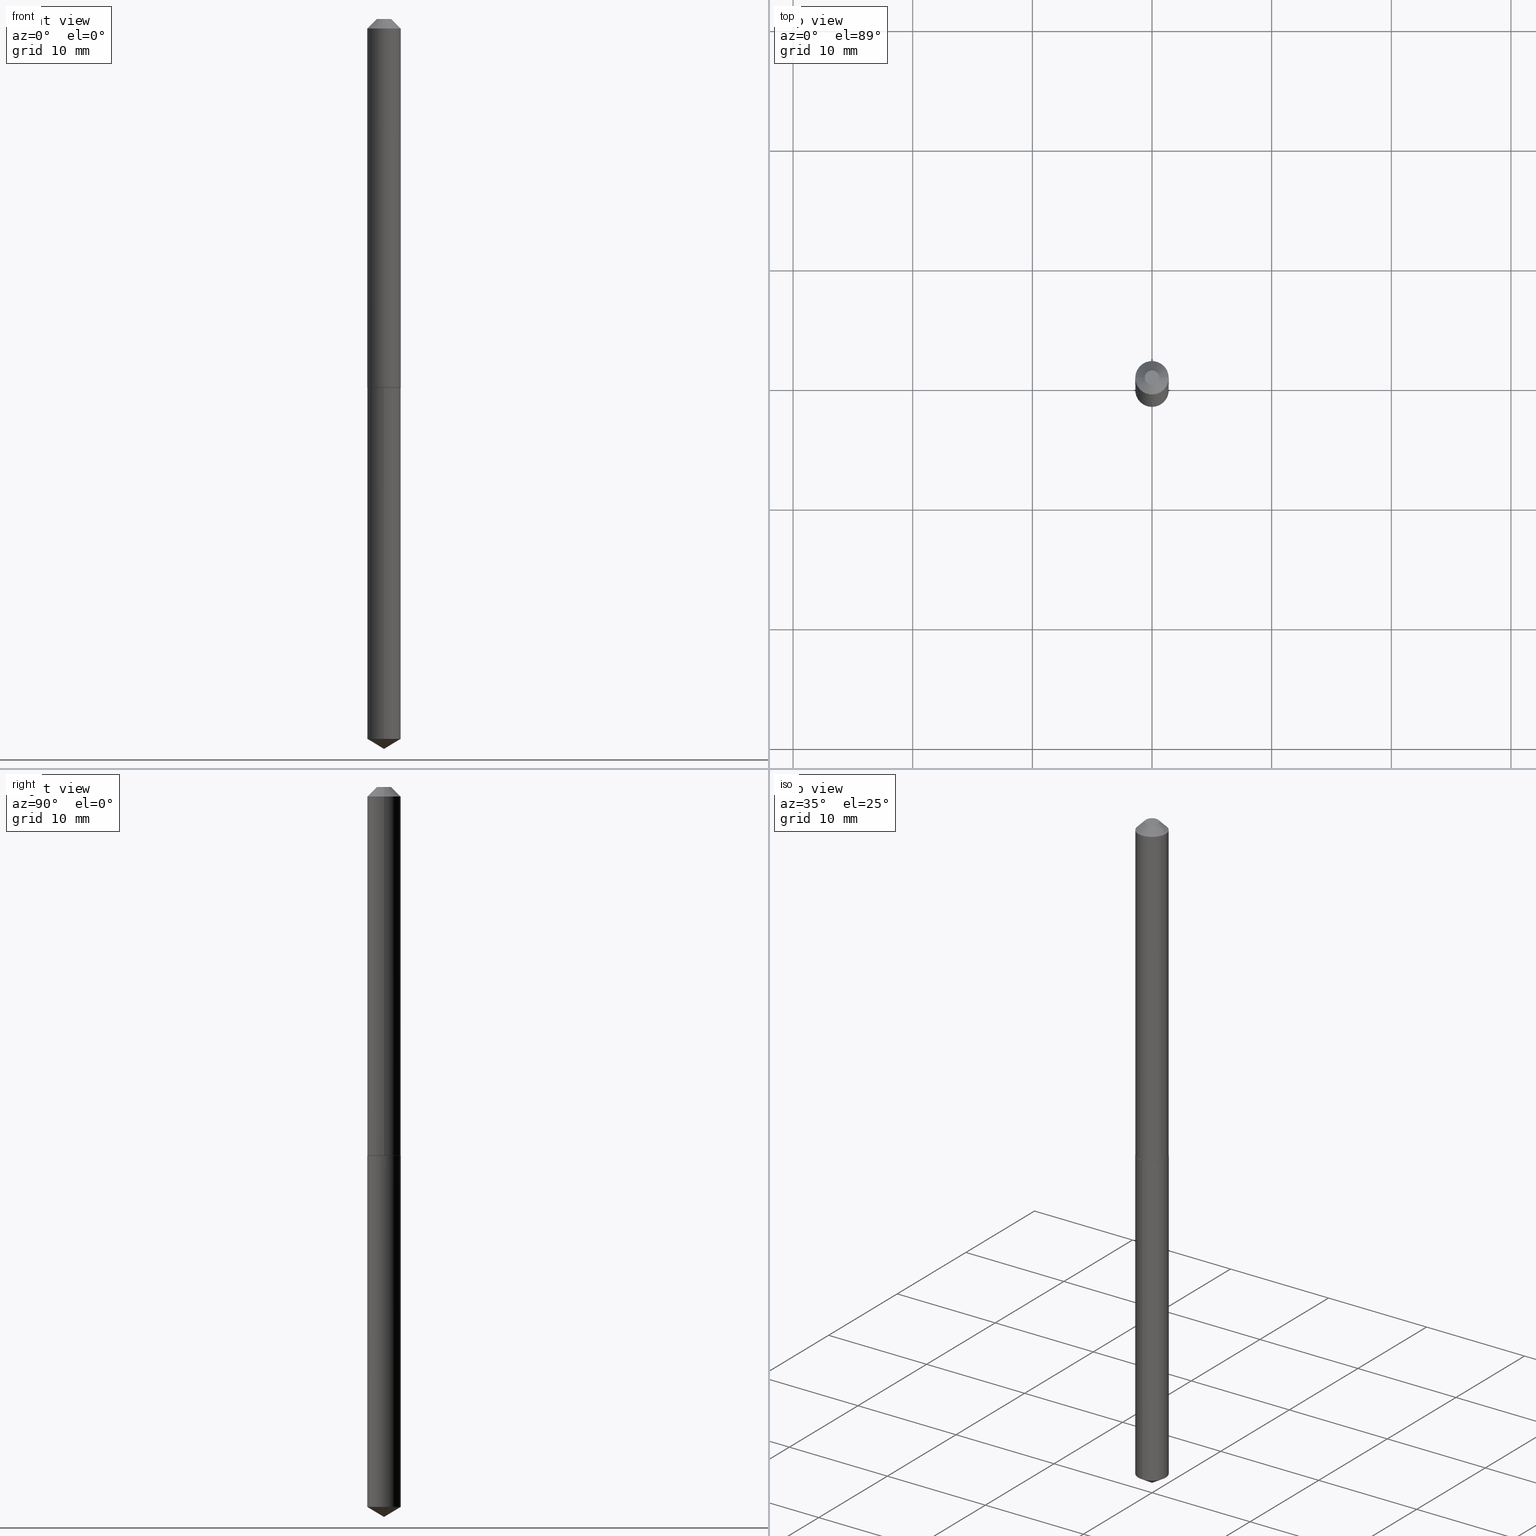
[diagram: canonical four-view strip — front | top / right | iso, engineering-drawing reading convention]
A machine part, canonical four-view strip (front | top / right | iso — engineering-drawing reading convention). The complete STEP part file that produces these views, byte-faithful:
ISO-10303-21;
HEADER;
FILE_DESCRIPTION (( 'STEP AP203' ),
    '1' );
FILE_NAME ('68308.STEP',
    '2024-04-23T13:02:25',
    ( '' ),
    ( '' ),
    'SwSTEP 2.0',
    'SolidWorks 2023',
    '' );
FILE_SCHEMA (( 'CONFIG_CONTROL_DESIGN' ));
ENDSEC;

DATA;
#1 = APPROVAL ( #9, 'UNSPECIFIED' ) ;
#2 = ORIENTED_EDGE ( 'NONE', *, *, #139, .F. ) ;
#3 = VERTEX_POINT ( 'NONE', #76 ) ;
#4 = ORIENTED_EDGE ( 'NONE', *, *, #253, .F. ) ;
#5 = DIRECTION ( 'NONE',  ( 0.000000000000000000, 0.000000000000000000, 1.000000000000000000 ) ) ;
#6 = ORIENTED_EDGE ( 'NONE', *, *, #23, .F. ) ;
#7 = CARTESIAN_POINT ( 'NONE',  ( 0.000000000000000000, 0.000000000000000000, 0.000000000000000000 ) ) ;
#8 = ORIENTED_EDGE ( 'NONE', *, *, #150, .T. ) ;
#9 = APPROVAL_STATUS ( 'not_yet_approved' ) ;
#10 = AXIS2_PLACEMENT_3D ( 'NONE', #106, #135, #229 ) ;
#11 = DIRECTION ( 'NONE',  ( -2.445510340889722322E-29, 3.491421858782170244E-15, 1.000000000000000000 ) ) ;
#12 = CARTESIAN_POINT ( 'NONE',  ( 2.965375474380097357E-29, -4.233770271481199271E-15, -1.212600000000000344 ) ) ;
#13 = AXIS2_PLACEMENT_3D ( 'NONE', #178, #27, #117 ) ;
#14 = EDGE_CURVE ( 'NONE', #248, #360, #197, .T. ) ;
#15 = CARTESIAN_POINT ( 'NONE',  ( 5.873137634680757329E-29, -8.384998736051259517E-15, -2.401600000000000179 ) ) ;
#16 = PERSON_AND_ORGANIZATION ( #349, #386 ) ;
#17 = DIRECTION ( 'NONE',  ( 1.000000000000000000, -6.982962677686264344E-15, 0.000000000000000000 ) ) ;
#18 = PERSON_AND_ORGANIZATION ( #349, #386 ) ;
#19 = DIRECTION ( 'NONE',  ( 2.438088387897960049E-29, -3.491481338843145188E-15, -1.000000000000000000 ) ) ;
#20 = DIRECTION ( 'NONE',  ( 1.000000000000000000, -6.982962677686265133E-15, 0.000000000000000000 ) ) ;
#21 = CARTESIAN_POINT ( 'NONE',  ( 2.965375474380097357E-29, -4.233770271481199271E-15, -1.212600000000000344 ) ) ;
#22 = COORDINATED_UNIVERSAL_TIME_OFFSET ( 5, 0, .BEHIND. ) ;
#23 = EDGE_CURVE ( 'NONE', #186, #3, #295, .T. ) ;
#24 = CARTESIAN_POINT ( 'NONE',  ( 2.965375474380096796E-29, -4.233770271481199271E-15, -1.212600000000000122 ) ) ;
#25 = DIRECTION ( 'NONE',  ( -2.445510340889722322E-29, 3.491421858782170244E-15, 1.000000000000000000 ) ) ;
#26 = VECTOR ( 'NONE', #264, 39.37007874015748143 ) ;
#27 = DIRECTION ( 'NONE',  ( -2.445510340889722322E-29, 3.491421858782170244E-15, 1.000000000000000000 ) ) ;
#28 = CC_DESIGN_PERSON_AND_ORGANIZATION_ASSIGNMENT ( #18, #79, ( #187 ) ) ;
#29 = DIRECTION ( 'NONE',  ( -2.445510340889722322E-29, 3.491421858782170244E-15, 1.000000000000000000 ) ) ;
#30 = ADVANCED_FACE ( 'NONE', ( #224 ), #137, .T. ) ;
#31 = ORIENTED_EDGE ( 'NONE', *, *, #231, .F. ) ;
#32 = VERTEX_POINT ( 'NONE', #166 ) ;
#33 = VERTEX_POINT ( 'NONE', #257 ) ;
#34 = ORIENTED_EDGE ( 'NONE', *, *, #23, .T. ) ;
#35 = AXIS2_PLACEMENT_3D ( 'NONE', #12, #225, #368 ) ;
#36 = ORIENTED_EDGE ( 'NONE', *, *, #291, .T. ) ;
#37 = ADVANCED_FACE ( 'NONE', ( #316 ), #282, .T. ) ;
#38 = CALENDAR_DATE ( 2024, 23, 4 ) ;
#39 = CARTESIAN_POINT ( 'NONE',  ( 2.964152739977004555E-29, -4.232024530811777768E-15, -1.212100000000000399 ) ) ;
#40 = CC_DESIGN_PERSON_AND_ORGANIZATION_ASSIGNMENT ( #62, #129, ( #198 ) ) ;
#41 = PERSON_AND_ORGANIZATION ( #349, #386 ) ;
#42 = AXIS2_PLACEMENT_3D ( 'NONE', #78, #309, #161 ) ;
#43 = DIRECTION ( 'NONE',  ( -2.445510340889722322E-29, 3.491421858782170244E-15, 1.000000000000000000 ) ) ;
#44 = DIMENSIONAL_EXPONENTS ( 1.000000000000000000, 0.000000000000000000, 0.000000000000000000, 0.000000000000000000, 0.000000000000000000, 0.000000000000000000, 0.000000000000000000 ) ;
#45 = CLOSED_SHELL ( 'NONE', ( #332, #110, #30, #37, #326 ) ) ;
#46 = CIRCLE ( 'NONE', #340, 0.02385000000000000661 ) ;
#47 = DIRECTION ( 'NONE',  ( 1.000000000000000000, -6.982962677686266711E-15, 4.876228204233108066E-29 ) ) ;
#48 = FACE_OUTER_BOUND ( 'NONE', #305, .T. ) ;
#49 = APPROVAL_DATE_TIME ( #314, #55 ) ;
#50 = CARTESIAN_POINT ( 'NONE',  ( 2.965375474380097357E-29, -4.233770271481199271E-15, -1.212600000000000344 ) ) ;
#51 = CARTESIAN_POINT ( 'NONE',  ( 0.05510000000000000314, -4.871222315160604071E-16, -0.03125000000000020123 ) ) ;
#52 = DIRECTION ( 'NONE',  ( -2.445510340889722322E-29, 3.491421858782170244E-15, 1.000000000000000000 ) ) ;
#53 = FACE_OUTER_BOUND ( 'NONE', #221, .T. ) ;
#54 = DIRECTION ( 'NONE',  ( -2.445468806185136597E-29, 3.491481338843145583E-15, 1.000000000000000000 ) ) ;
#55 = APPROVAL ( #200, 'UNSPECIFIED' ) ;
#56 = LINE ( 'NONE', #292, #261 ) ;
#57 = EDGE_CURVE ( 'NONE', #360, #33, #72, .T. ) ;
#58 = ORIENTED_EDGE ( 'NONE', *, *, #301, .T. ) ;
#59 = AXIS2_PLACEMENT_3D ( 'NONE', #102, #131, #17 ) ;
#60 = VERTEX_POINT ( 'NONE', #168 ) ;
#61 = EDGE_LOOP ( 'NONE', ( #364, #156, #99, #65 ) ) ;
#62 = PERSON_AND_ORGANIZATION ( #349, #386 ) ;
#63 = ORIENTED_EDGE ( 'NONE', *, *, #163, .F. ) ;
#64 = ADVANCED_FACE ( 'NONE', ( #48 ), #363, .T. ) ;
#65 = ORIENTED_EDGE ( 'NONE', *, *, #57, .F. ) ;
#66 = CIRCLE ( 'NONE', #133, 0.05510000000000000314 ) ;
#67 = CARTESIAN_POINT ( 'NONE',  ( -9.040684741099976020E-28, 1.290724826337878344E-13, 36.96847874015747948 ) ) ;
#68 = CC_DESIGN_DATE_AND_TIME_ASSIGNMENT ( #160, #342, ( #379 ) ) ;
#69 =( LENGTH_UNIT ( ) NAMED_UNIT ( * ) SI_UNIT ( $, .METRE. ) );
#70 = DIRECTION ( 'NONE',  ( -2.445468806185136597E-29, 3.491481338843145583E-15, 1.000000000000000000 ) ) ;
#71 = CARTESIAN_POINT ( 'NONE',  ( -2.919964657261599251E-48, 4.168935659749557485E-34, 1.194030629168671644E-19 ) ) ;
#72 = CIRCLE ( 'NONE', #176, 0.05510000000000014886 ) ;
#73 = EDGE_CURVE ( 'NONE', #367, #248, #235, .T. ) ;
#74 = DESIGN_CONTEXT ( 'detailed design', #306, 'design' ) ;
#75 = VECTOR ( 'NONE', #118, 39.37007874015748143 ) ;
#76 = CARTESIAN_POINT ( 'NONE',  ( 0.02385000000000000661, -3.253725543814557747E-16, 2.388061258354536065E-19 ) ) ;
#77 = PRODUCT_DEFINITION_SHAPE ( 'NONE', 'NONE',  #379 ) ;
#78 = CARTESIAN_POINT ( 'NONE',  ( 2.964152739977004555E-29, -4.232024530811777768E-15, -1.212100000000000399 ) ) ;
#79 = PERSON_AND_ORGANIZATION_ROLE ( 'classification_officer' ) ;
#80 = DIRECTION ( 'NONE',  ( 1.000000000000000000, -6.982962677686265133E-15, 4.876176775795935793E-29 ) ) ;
#81 = ADVANCED_FACE ( 'NONE', ( #136 ), #346, .T. ) ;
#82 = CALENDAR_DATE ( 2024, 23, 4 ) ;
#83 = DIRECTION ( 'NONE',  ( -1.000000000000000000, 6.982962677686265922E-15, 0.000000000000000000 ) ) ;
#84 = CC_DESIGN_SECURITY_CLASSIFICATION ( #187, ( #94 ) ) ;
#85 = LINE ( 'NONE', #325, #353 ) ;
#86 = CC_DESIGN_PERSON_AND_ORGANIZATION_ASSIGNMENT ( #277, #354, ( #94 ) ) ;
#87 = DIRECTION ( 'NONE',  ( -2.445468806185136597E-29, 3.491481338843145583E-15, 1.000000000000000000 ) ) ;
#88 = AXIS2_PLACEMENT_3D ( 'NONE', #50, #11, #373 ) ;
#89 = DIRECTION ( 'NONE',  ( -2.445468806185136597E-29, 3.491481338843145583E-15, 1.000000000000000000 ) ) ;
#90 = AXIS2_PLACEMENT_3D ( 'NONE', #256, #148, #105 ) ;
#91 = ORIENTED_EDGE ( 'NONE', *, *, #319, .F. ) ;
#92 = ORIENTED_EDGE ( 'NONE', *, *, #266, .T. ) ;
#93 = VERTEX_POINT ( 'NONE', #345 ) ;
#94 = PRODUCT_DEFINITION_FORMATION_WITH_SPECIFIED_SOURCE ( 'ANY', '', #198, .NOT_KNOWN. ) ;
#95 = PERSON_AND_ORGANIZATION_ROLE ( 'creator' ) ;
#96 = ORIENTED_EDGE ( 'NONE', *, *, #210, .T. ) ;
#97 = FACE_OUTER_BOUND ( 'NONE', #303, .T. ) ;
#98 = EDGE_CURVE ( 'NONE', #186, #93, #167, .T. ) ;
#99 = ORIENTED_EDGE ( 'NONE', *, *, #134, .T. ) ;
#100 = MECHANICAL_CONTEXT ( 'NONE', #184, 'mechanical' ) ;
#101 = ADVANCED_FACE ( 'NONE', ( #288 ), #310, .F. ) ;
#102 = CARTESIAN_POINT ( 'NONE',  ( 2.965375474380096796E-29, -4.233770271481199271E-15, -1.212600000000000122 ) ) ;
#103 = DIRECTION ( 'NONE',  ( -6.982962677686265922E-15, -1.000000000000000000, 2.478990919840528917E-15 ) ) ;
#104 = DIRECTION ( 'NONE',  ( 1.000000000000000000, -6.982962677686265922E-15, 4.876176775795935793E-29 ) ) ;
#105 = DIRECTION ( 'NONE',  ( 1.000000000000000000, -6.982962677686265133E-15, 4.876176775795935793E-29 ) ) ;
#106 = CARTESIAN_POINT ( 'NONE',  ( 7.642090019328600035E-31, -1.091087918388489897E-16, -0.03125000000000020123 ) ) ;
#107 = ORIENTED_EDGE ( 'NONE', *, *, #196, .F. ) ;
#108 = AXIS2_PLACEMENT_3D ( 'NONE', #24, #142, #299 ) ;
#109 = DIRECTION ( 'NONE',  ( 0.7071067811864750752, -2.468850131081498176E-15, 0.7071067811866199593 ) ) ;
#110 = ADVANCED_FACE ( 'NONE', ( #258 ), #241, .T. ) ;
#111 = CARTESIAN_POINT ( 'NONE',  ( 5.873138517963653243E-29, -8.384998736051259517E-15, -2.401600000000000179 ) ) ;
#112 = ADVANCED_FACE ( 'NONE', ( #284 ), #289, .F. ) ;
#113 = DIRECTION ( 'NONE',  ( 6.090539988449798946E-15, 0.8571673007021166635, 0.5150380749100469391 ) ) ;
#114 = AXIS2_PLACEMENT_3D ( 'NONE', #372, #251, #104 ) ;
#115 = CIRCLE ( 'NONE', #194, 0.05510000000000000314 ) ;
#116 = DIRECTION ( 'NONE',  ( -2.445468806185136597E-29, 3.491481338843145583E-15, 1.000000000000000000 ) ) ;
#117 = DIRECTION ( 'NONE',  ( -6.982962677686265922E-15, -1.000000000000000000, 4.957981839681057834E-15 ) ) ;
#118 = DIRECTION ( 'NONE',  ( 0.7071067811865452413, -7.319954787623248157E-15, -0.7071067811865497932 ) ) ;
#119 = CC_DESIGN_APPROVAL ( #1, ( #94 ) ) ;
#120 = ADVANCED_BREP_SHAPE_REPRESENTATION ( '68308', ( #222, #212, #165 ), #296 ) ;
#121 = VERTEX_POINT ( 'NONE', #15 ) ;
#122 = ORIENTED_EDGE ( 'NONE', *, *, #330, .T. ) ;
#123 = CIRCLE ( 'NONE', #108, 0.05460000000000035658 ) ;
#124 = ORIENTED_EDGE ( 'NONE', *, *, #73, .F. ) ;
#125 = APPROVAL_PERSON_ORGANIZATION ( #281, #1, #334 ) ;
#126 = CYLINDRICAL_SURFACE ( 'NONE', #90, 0.05510000000000008641 ) ;
#127 = EDGE_LOOP ( 'NONE', ( #276, #362 ) ) ;
#128 = EDGE_CURVE ( 'NONE', #33, #280, #312, .T. ) ;
#129 = PERSON_AND_ORGANIZATION_ROLE ( 'design_owner' ) ;
#130 = ORIENTED_EDGE ( 'NONE', *, *, #14, .T. ) ;
#131 = DIRECTION ( 'NONE',  ( -2.445468806185136597E-29, 3.491481338843145583E-15, 1.000000000000000000 ) ) ;
#132 = CONICAL_SURFACE ( 'NONE', #201, 0.05510000000000014886, 0.7853981633973459164 ) ;
#133 = AXIS2_PLACEMENT_3D ( 'NONE', #355, #116, #290 ) ;
#134 = EDGE_CURVE ( 'NONE', #367, #33, #377, .T. ) ;
#135 = DIRECTION ( 'NONE',  ( 2.445468806185136597E-29, -3.491481338843145583E-15, -1.000000000000000000 ) ) ;
#136 = FACE_OUTER_BOUND ( 'NONE', #61, .T. ) ;
#137 = CONICAL_SURFACE ( 'NONE', #265, 65.52281426576915635, 1.029744258676659419 ) ;
#138 = DIRECTION ( 'NONE',  ( -2.445510340889722322E-29, 3.491421858782170244E-15, 1.000000000000000000 ) ) ;
#139 = EDGE_CURVE ( 'NONE', #33, #360, #180, .T. ) ;
#140 = APPROVAL_ROLE ( '' ) ;
#141 = LOCAL_TIME ( 9, 2, 25.00000000000000000, #339 ) ;
#142 = DIRECTION ( 'NONE',  ( -2.445468806185136597E-29, 3.491481338843145583E-15, 1.000000000000000000 ) ) ;
#143 = LINE ( 'NONE', #242, #26 ) ;
#144 = FACE_OUTER_BOUND ( 'NONE', #274, .T. ) ;
#145 = AXIS2_PLACEMENT_3D ( 'NONE', #328, #358, #199 ) ;
#146 = FACE_OUTER_BOUND ( 'NONE', #151, .T. ) ;
#147 = CARTESIAN_POINT ( 'NONE',  ( 0.05510000000000000314, -4.938700353793622923E-16, -0.03125000000000020123 ) ) ;
#148 = DIRECTION ( 'NONE',  ( -2.445468806185136597E-29, 3.491481338843145583E-15, 1.000000000000000000 ) ) ;
#149 = VECTOR ( 'NONE', #113, 39.37007874015748143 ) ;
#150 = EDGE_CURVE ( 'NONE', #121, #185, #297, .T. ) ;
#151 = EDGE_LOOP ( 'NONE', ( #182, #122, #31, #107 ) ) ;
#152 = VECTOR ( 'NONE', #240, 39.37007874015748143 ) ;
#153 = ORIENTED_EDGE ( 'NONE', *, *, #317, .F. ) ;
#154 = ORIENTED_EDGE ( 'NONE', *, *, #150, .F. ) ;
#155 = APPROVAL_DATE_TIME ( #370, #1 ) ;
#156 = ORIENTED_EDGE ( 'NONE', *, *, #163, .T. ) ;
#157 = AXIS2_PLACEMENT_3D ( 'NONE', #356, #388, #294 ) ;
#158 = DIRECTION ( 'NONE',  ( 1.000000000000000000, 0.000000000000000000, 0.000000000000000000 ) ) ;
#159 = EDGE_LOOP ( 'NONE', ( #34, #278 ) ) ;
#160 = DATE_AND_TIME ( #38, #269 ) ;
#161 = DIRECTION ( 'NONE',  ( 1.000000000000000000, -6.982962677686265133E-15, 0.000000000000000000 ) ) ;
#162 = CARTESIAN_POINT ( 'NONE',  ( 0.05460000000000035658, -4.615040033682871428E-15, -1.212600000000000122 ) ) ;
#163 = EDGE_CURVE ( 'NONE', #248, #367, #123, .T. ) ;
#164 = DIRECTION ( 'NONE',  ( 1.000000000000000000, -6.982962677686265133E-15, 0.000000000000000000 ) ) ;
#165 = AXIS2_PLACEMENT_3D ( 'NONE', #7, #5, #158 ) ;
#166 = CARTESIAN_POINT ( 'NONE',  ( -3.847612435404836586E-16, -0.05510000000000424281, -1.212600000000000122 ) ) ;
#167 = LINE ( 'NONE', #191, #357 ) ;
#168 = CARTESIAN_POINT ( 'NONE',  ( -3.847612435404554569E-16, -0.05510000000000828818, -2.368492579891581684 ) ) ;
#169 = ADVANCED_FACE ( 'NONE', ( #53 ), #323, .T. ) ;
#170 = DATE_TIME_ROLE ( 'classification_date' ) ;
#171 = APPROVAL_PERSON_ORGANIZATION ( #381, #55, #140 ) ;
#172 = CARTESIAN_POINT ( 'NONE',  ( 3.915090474038731567E-16, 0.05509999999999173198, -2.368492579891582128 ) ) ;
#173 = CARTESIAN_POINT ( 'NONE',  ( -0.02385000000000000661, 2.210980557822409212E-16, 2.388061258323791482E-19 ) ) ;
#174 = AXIS2_PLACEMENT_3D ( 'NONE', #39, #70, #164 ) ;
#175 = CARTESIAN_POINT ( 'NONE',  ( 5.873036904715196670E-29, -8.385142987095137915E-15, -2.401600000000000179 ) ) ;
#176 = AXIS2_PLACEMENT_3D ( 'NONE', #195, #315, #20 ) ;
#177 = AXIS2_PLACEMENT_3D ( 'NONE', #272, #29, #103 ) ;
#178 = CARTESIAN_POINT ( 'NONE',  ( 5.792122731462659199E-29, -8.269478891318782780E-15, -2.368492579891582128 ) ) ;
#179 = CARTESIAN_POINT ( 'NONE',  ( 3.915090474038733046E-16, 0.05509999999999576348, -1.212600000000000566 ) ) ;
#180 = CIRCLE ( 'NONE', #42, 0.05510000000000014886 ) ;
#181 = ORIENTED_EDGE ( 'NONE', *, *, #128, .F. ) ;
#182 = ORIENTED_EDGE ( 'NONE', *, *, #317, .T. ) ;
#183 = EDGE_LOOP ( 'NONE', ( #304, #92, #247, #298 ) ) ;
#184 = APPLICATION_CONTEXT ( 'configuration controlled 3d designs of mechanical parts and assemblies' ) ;
#185 = VERTEX_POINT ( 'NONE', #172 ) ;
#186 = VERTEX_POINT ( 'NONE', #173 ) ;
#187 = SECURITY_CLASSIFICATION ( '', '', #311 ) ;
#188 = CALENDAR_DATE ( 2024, 23, 4 ) ;
#189 = CARTESIAN_POINT ( 'NONE',  ( 0.05510000000000014886, -4.616785774352292143E-15, -1.212100000000000399 ) ) ;
#190 = APPROVAL_ROLE ( '' ) ;
#191 = CARTESIAN_POINT ( 'NONE',  ( -0.05510000000000000314, 2.756524517016642882E-16, -0.03125000000000020123 ) ) ;
#192 = APPLICATION_PROTOCOL_DEFINITION ( 'international standard', 'config_control_design', 1994, #306 ) ;
#193 = DIRECTION ( 'NONE',  ( -6.982962677686267499E-15, -1.000000000000000000, 3.468864327941555954E-15 ) ) ;
#194 = AXIS2_PLACEMENT_3D ( 'NONE', #21, #263, #234 ) ;
#195 = CARTESIAN_POINT ( 'NONE',  ( 2.964152739977004555E-29, -4.232024530811777768E-15, -1.212100000000000399 ) ) ;
#196 = EDGE_CURVE ( 'NONE', #60, #32, #56, .T. ) ;
#197 = LINE ( 'NONE', #347, #293 ) ;
#198 = PRODUCT ( '68308', '68308', '', ( #100 ) ) ;
#199 = DIRECTION ( 'NONE',  ( -6.982962677686265922E-15, -1.000000000000000000, 4.957981839681057834E-15 ) ) ;
#200 = APPROVAL_STATUS ( 'not_yet_approved' ) ;
#201 = AXIS2_PLACEMENT_3D ( 'NONE', #327, #54, #203 ) ;
#202 = DIRECTION ( 'NONE',  ( 2.445468806185136597E-29, -3.491481338843145583E-15, -1.000000000000000000 ) ) ;
#203 = DIRECTION ( 'NONE',  ( 1.000000000000000000, -6.982962677686265133E-15, 0.000000000000000000 ) ) ;
#204 = AXIS2_PLACEMENT_3D ( 'NONE', #341, #369, #47 ) ;
#205 = CARTESIAN_POINT ( 'NONE',  ( -0.05460000000000035658, -3.843164710582071920E-15, -1.212600000000000122 ) ) ;
#206 = VECTOR ( 'NONE', #260, 39.37007874015748143 ) ;
#207 = VERTEX_POINT ( 'NONE', #179 ) ;
#208 = CIRCLE ( 'NONE', #35, 0.05510000000000000314 ) ;
#209 = CARTESIAN_POINT ( 'NONE',  ( 0.000000000000000000, 0.000000000000000000, 0.000000000000000000 ) ) ;
#210 = EDGE_CURVE ( 'NONE', #121, #60, #387, .T. ) ;
#211 = UNCERTAINTY_MEASURE_WITH_UNIT (LENGTH_MEASURE( 1.000000000000000082E-05 ), #228, 'distance_accuracy_value', 'NONE');
#212 = MANIFOLD_SOLID_BREP ( 'Body-Move/Copy2[2]', #268 ) ;
#213 = APPROVAL ( #279, 'UNSPECIFIED' ) ;
#214 = ORIENTED_EDGE ( 'NONE', *, *, #253, .T. ) ;
#215 = ORIENTED_EDGE ( 'NONE', *, *, #266, .F. ) ;
#216 = CC_DESIGN_APPROVAL ( #213, ( #379 ) ) ;
#217 = ORIENTED_EDGE ( 'NONE', *, *, #128, .T. ) ;
#218 = COORDINATED_UNIVERSAL_TIME_OFFSET ( 5, 0, .BEHIND. ) ;
#219 = ORIENTED_EDGE ( 'NONE', *, *, #227, .T. ) ;
#220 =( NAMED_UNIT ( * ) PLANE_ANGLE_UNIT ( ) SI_UNIT ( $, .RADIAN. ) );
#221 = EDGE_LOOP ( 'NONE', ( #91, #36, #219, #300 ) ) ;
#222 = MANIFOLD_SOLID_BREP ( 'Body-Move/Copy2[1]', #45 ) ;
#223 = APPLICATION_PROTOCOL_DEFINITION ( 'international standard', 'config_control_design', 1994, #184 ) ;
#224 = FACE_OUTER_BOUND ( 'NONE', #246, .T. ) ;
#225 = DIRECTION ( 'NONE',  ( -2.445510340889722322E-29, 3.491421858782170244E-15, 1.000000000000000000 ) ) ;
#226 = ORIENTED_EDGE ( 'NONE', *, *, #227, .F. ) ;
#227 = EDGE_CURVE ( 'NONE', #280, #93, #66, .T. ) ;
#228 =( CONVERSION_BASED_UNIT ( 'INCH', #244 ) LENGTH_UNIT ( ) NAMED_UNIT ( #44 ) );
#229 = DIRECTION ( 'NONE',  ( -1.000000000000000000, 6.982962677686265922E-15, 0.000000000000000000 ) ) ;
#230 = CARTESIAN_POINT ( 'NONE',  ( 0.05510000000000008641, -3.847612435405138326E-16, 2.686773403463564871E-30 ) ) ;
#231 = EDGE_CURVE ( 'NONE', #32, #207, #115, .T. ) ;
#232 = DIRECTION ( 'NONE',  ( -0.7071067811864750752, 7.493145998870092258E-15, 0.7071067811866199593 ) ) ;
#233 = PERSON_AND_ORGANIZATION_ROLE ( 'design_supplier' ) ;
#234 = DIRECTION ( 'NONE',  ( -6.982962677686265922E-15, -1.000000000000000000, 2.478990919840528917E-15 ) ) ;
#235 = CIRCLE ( 'NONE', #59, 0.05460000000000035658 ) ;
#236 = PLANE ( 'NONE',  #320 ) ;
#237 = AXIS2_PLACEMENT_3D ( 'NONE', #71, #19, #374 ) ;
#238 = CIRCLE ( 'NONE', #145, 0.05510000000000000314 ) ;
#239 = DIRECTION ( 'NONE',  ( 6.982962677686265922E-15, 1.000000000000000000, -3.491421858782170244E-15 ) ) ;
#240 = DIRECTION ( 'NONE',  ( -5.985567269335961790E-15, -0.8571673007021131108, 0.5150380749100529343 ) ) ;
#241 = CONICAL_SURFACE ( 'NONE', #375, 65.52281426576915635, 1.029744258676659419 ) ;
#242 = CARTESIAN_POINT ( 'NONE',  ( -0.05510000000000008641, 3.915090474038158164E-16, -2.710333234730456984E-30 ) ) ;
#243 = CIRCLE ( 'NONE', #13, 0.05510000000000000314 ) ;
#244 = LENGTH_MEASURE_WITH_UNIT ( LENGTH_MEASURE( 0.02539999999999999897 ), #69 );
#245 = ORIENTED_EDGE ( 'NONE', *, *, #98, .T. ) ;
#246 = EDGE_LOOP ( 'NONE', ( #154, #96, #215 ) ) ;
#247 = ORIENTED_EDGE ( 'NONE', *, *, #196, .T. ) ;
#248 = VERTEX_POINT ( 'NONE', #205 ) ;
#249 = CARTESIAN_POINT ( 'NONE',  ( -0.05510000000000014886, -3.840515483407961508E-15, -1.212100000000000399 ) ) ;
#250 = ADVANCED_FACE ( 'NONE', ( #144 ), #351, .T. ) ;
#251 = DIRECTION ( 'NONE',  ( -2.438088387897960049E-29, 3.491481338843145188E-15, 1.000000000000000000 ) ) ;
#252 = COORDINATED_UNIVERSAL_TIME_OFFSET ( 5, 0, .BEHIND. ) ;
#253 = EDGE_CURVE ( 'NONE', #93, #280, #302, .T. ) ;
#254 = DIRECTION ( 'NONE',  ( -0.7071067811865452413, 2.468850131082233000E-15, -0.7071067811865497932 ) ) ;
#255 = CC_DESIGN_APPROVAL ( #55, ( #187 ) ) ;
#256 = CARTESIAN_POINT ( 'NONE',  ( 0.000000000000000000, 0.000000000000000000, 0.000000000000000000 ) ) ;
#257 = CARTESIAN_POINT ( 'NONE',  ( 0.05510000000000014886, -4.616785774352292143E-15, -1.212100000000000399 ) ) ;
#258 = FACE_OUTER_BOUND ( 'NONE', #336, .T. ) ;
#259 = ADVANCED_FACE ( 'NONE', ( #267 ), #132, .T. ) ;
#260 = DIRECTION ( 'NONE',  ( -2.445468806185136877E-29, 3.491481338843145188E-15, 1.000000000000000000 ) ) ;
#261 = VECTOR ( 'NONE', #52, 39.37007874015748143 ) ;
#262 = SHAPE_DEFINITION_REPRESENTATION ( #77, #120 ) ;
#263 = DIRECTION ( 'NONE',  ( -2.445510340889722322E-29, 3.491421858782170244E-15, 1.000000000000000000 ) ) ;
#264 = DIRECTION ( 'NONE',  ( -2.445468806185136877E-29, 3.491481338843145188E-15, 1.000000000000000000 ) ) ;
#265 = AXIS2_PLACEMENT_3D ( 'NONE', #287, #43, #343 ) ;
#266 = EDGE_CURVE ( 'NONE', #185, #60, #243, .T. ) ;
#267 = FACE_OUTER_BOUND ( 'NONE', #333, .T. ) ;
#268 = CLOSED_SHELL ( 'NONE', ( #169, #250, #259, #112, #81, #337, #64, #101 ) ) ;
#269 = LOCAL_TIME ( 9, 2, 25.00000000000000000, #218 ) ;
#270 = CYLINDRICAL_SURFACE ( 'NONE', #177, 0.05510000000000000314 ) ;
#271 = LINE ( 'NONE', #51, #75 ) ;
#272 = CARTESIAN_POINT ( 'NONE',  ( 2.965375474380097357E-29, -4.233770271481199271E-15, -1.212600000000000344 ) ) ;
#273 = LOCAL_TIME ( 9, 2, 25.00000000000000000, #252 ) ;
#274 = EDGE_LOOP ( 'NONE', ( #329, #58, #226, #181 ) ) ;
#275 = ORIENTED_EDGE ( 'NONE', *, *, #73, .T. ) ;
#276 = ORIENTED_EDGE ( 'NONE', *, *, #231, .T. ) ;
#277 = PERSON_AND_ORGANIZATION ( #349, #386 ) ;
#278 = ORIENTED_EDGE ( 'NONE', *, *, #319, .T. ) ;
#279 = APPROVAL_STATUS ( 'not_yet_approved' ) ;
#280 = VERTEX_POINT ( 'NONE', #147 ) ;
#281 = PERSON_AND_ORGANIZATION ( #349, #386 ) ;
#282 = CYLINDRICAL_SURFACE ( 'NONE', #88, 0.05510000000000000314 ) ;
#283 = CALENDAR_DATE ( 2024, 23, 4 ) ;
#284 = FACE_OUTER_BOUND ( 'NONE', #366, .T. ) ;
#285 = CC_DESIGN_PERSON_AND_ORGANIZATION_ASSIGNMENT ( #16, #233, ( #94 ) ) ;
#286 = APPROVAL_PERSON_ORGANIZATION ( #41, #213, #190 ) ;
#287 = CARTESIAN_POINT ( 'NONE',  ( -9.040684741099976020E-28, 1.290724826337878344E-13, 36.96847874015747948 ) ) ;
#288 = FACE_OUTER_BOUND ( 'NONE', #159, .T. ) ;
#289 = PLANE ( 'NONE',  #114 ) ;
#290 = DIRECTION ( 'NONE',  ( 1.000000000000000000, -6.982962677686265922E-15, 0.000000000000000000 ) ) ;
#291 = EDGE_CURVE ( 'NONE', #3, #280, #271, .T. ) ;
#292 = CARTESIAN_POINT ( 'NONE',  ( -3.847612435404836586E-16, -0.05510000000000424281, -1.212600000000000122 ) ) ;
#293 = VECTOR ( 'NONE', #232, 39.37007874015748143 ) ;
#294 = DIRECTION ( 'NONE',  ( 1.000000000000000000, -6.982962677686265922E-15, 0.000000000000000000 ) ) ;
#295 = CIRCLE ( 'NONE', #204, 0.02385000000000000661 ) ;
#296 =( GEOMETRIC_REPRESENTATION_CONTEXT ( 3 ) GLOBAL_UNCERTAINTY_ASSIGNED_CONTEXT ( ( #211 ) ) GLOBAL_UNIT_ASSIGNED_CONTEXT ( ( #228, #220, #344 ) ) REPRESENTATION_CONTEXT ( 'NONE', 'WORKASPACE' ) );
#297 = LINE ( 'NONE', #111, #149 ) ;
#298 = ORIENTED_EDGE ( 'NONE', *, *, #389, .F. ) ;
#299 = DIRECTION ( 'NONE',  ( 1.000000000000000000, -6.982962677686264344E-15, 0.000000000000000000 ) ) ;
#300 = ORIENTED_EDGE ( 'NONE', *, *, #98, .F. ) ;
#301 = EDGE_CURVE ( 'NONE', #360, #93, #143, .T. ) ;
#302 = CIRCLE ( 'NONE', #157, 0.05510000000000000314 ) ;
#303 = EDGE_LOOP ( 'NONE', ( #307, #338, #217, #4 ) ) ;
#304 = ORIENTED_EDGE ( 'NONE', *, *, #330, .F. ) ;
#305 = EDGE_LOOP ( 'NONE', ( #350, #6, #245, #214 ) ) ;
#306 = APPLICATION_CONTEXT ( 'configuration controlled 3d designs of mechanical parts and assemblies' ) ;
#307 = ORIENTED_EDGE ( 'NONE', *, *, #301, .F. ) ;
#308 = PERSON_AND_ORGANIZATION ( #349, #386 ) ;
#309 = DIRECTION ( 'NONE',  ( -2.445468806185136597E-29, 3.491481338843145583E-15, 1.000000000000000000 ) ) ;
#310 = PLANE ( 'NONE',  #237 ) ;
#311 = SECURITY_CLASSIFICATION_LEVEL ( 'unclassified' ) ;
#312 = LINE ( 'NONE', #230, #206 ) ;
#313 = AXIS2_PLACEMENT_3D ( 'NONE', #209, #87, #80 ) ;
#314 = DATE_AND_TIME ( #321, #348 ) ;
#315 = DIRECTION ( 'NONE',  ( -2.445468806185136597E-29, 3.491481338843145583E-15, 1.000000000000000000 ) ) ;
#316 = FACE_OUTER_BOUND ( 'NONE', #183, .T. ) ;
#317 = EDGE_CURVE ( 'NONE', #60, #185, #238, .T. ) ;
#318 = CARTESIAN_POINT ( 'NONE',  ( -5.839929314523198503E-48, 8.337871319499114970E-34, 2.388061258337343288E-19 ) ) ;
#319 = EDGE_CURVE ( 'NONE', #3, #186, #46, .T. ) ;
#320 = AXIS2_PLACEMENT_3D ( 'NONE', #352, #322, #239 ) ;
#321 = CALENDAR_DATE ( 2024, 23, 4 ) ;
#322 = DIRECTION ( 'NONE',  ( 2.445510340889722042E-29, -3.491421858782170244E-15, -1.000000000000000000 ) ) ;
#323 = CONICAL_SURFACE ( 'NONE', #365, 0.05510000000000000314, 0.7853981633974450594 ) ;
#324 = ORIENTED_EDGE ( 'NONE', *, *, #134, .F. ) ;
#325 = CARTESIAN_POINT ( 'NONE',  ( 3.915090474038448563E-16, 0.05509999999999577042, -1.212600000000000566 ) ) ;
#326 = ADVANCED_FACE ( 'NONE', ( #382 ), #236, .F. ) ;
#327 = CARTESIAN_POINT ( 'NONE',  ( 2.964152739977004555E-29, -4.232024530811777768E-15, -1.212100000000000399 ) ) ;
#328 = CARTESIAN_POINT ( 'NONE',  ( 5.792122731462659199E-29, -8.269478891318782780E-15, -2.368492579891582128 ) ) ;
#329 = ORIENTED_EDGE ( 'NONE', *, *, #139, .T. ) ;
#330 = EDGE_CURVE ( 'NONE', #185, #207, #85, .T. ) ;
#331 = ORIENTED_EDGE ( 'NONE', *, *, #210, .F. ) ;
#332 = ADVANCED_FACE ( 'NONE', ( #146 ), #270, .T. ) ;
#333 = EDGE_LOOP ( 'NONE', ( #275, #130, #2, #324 ) ) ;
#334 = APPROVAL_ROLE ( '' ) ;
#335 = CC_DESIGN_DATE_AND_TIME_ASSIGNMENT ( #378, #170, ( #187 ) ) ;
#336 = EDGE_LOOP ( 'NONE', ( #331, #8, #153 ) ) ;
#337 = ADVANCED_FACE ( 'NONE', ( #97 ), #126, .T. ) ;
#338 = ORIENTED_EDGE ( 'NONE', *, *, #57, .T. ) ;
#339 = COORDINATED_UNIVERSAL_TIME_OFFSET ( 5, 0, .BEHIND. ) ;
#340 = AXIS2_PLACEMENT_3D ( 'NONE', #318, #89, #385 ) ;
#341 = CARTESIAN_POINT ( 'NONE',  ( -5.839929314523198503E-48, 8.337871319499114970E-34, 2.388061258337343288E-19 ) ) ;
#342 = DATE_TIME_ROLE ( 'creation_date' ) ;
#343 = DIRECTION ( 'NONE',  ( -6.982962677686267499E-15, -1.000000000000000000, 3.468864327941555954E-15 ) ) ;
#344 =( NAMED_UNIT ( * ) SI_UNIT ( $, .STERADIAN. ) SOLID_ANGLE_UNIT ( ) );
#345 = CARTESIAN_POINT ( 'NONE',  ( -0.05510000000000000314, -1.779057613921496385E-15, -0.03125000000000020123 ) ) ;
#346 = CONICAL_SURFACE ( 'NONE', #174, 0.05510000000000014886, 0.7853981633973459164 ) ;
#347 = CARTESIAN_POINT ( 'NONE',  ( -0.05510000000000014886, -3.840515483407961508E-15, -1.212100000000000399 ) ) ;
#348 = LOCAL_TIME ( 9, 2, 25.00000000000000000, #22 ) ;
#349 = PERSON ( 'UNSPECIFIED', 'UNSPECIFIED', 'UNSPECIFIED', ('UNSPECIFIED'), ('UNSPECIFIED'), ('UNSPECIFIED') ) ;
#350 = ORIENTED_EDGE ( 'NONE', *, *, #291, .F. ) ;
#351 = CYLINDRICAL_SURFACE ( 'NONE', #313, 0.05510000000000008641 ) ;
#352 = CARTESIAN_POINT ( 'NONE',  ( 2.965375474380097357E-29, -4.233770271481199271E-15, -1.212600000000000344 ) ) ;
#353 = VECTOR ( 'NONE', #25, 39.37007874015748143 ) ;
#354 = PERSON_AND_ORGANIZATION_ROLE ( 'creator' ) ;
#355 = CARTESIAN_POINT ( 'NONE',  ( 7.642090019328600035E-31, -1.091087918388489897E-16, -0.03125000000000020123 ) ) ;
#356 = CARTESIAN_POINT ( 'NONE',  ( 7.642090019328600035E-31, -1.091087918388489897E-16, -0.03125000000000020123 ) ) ;
#357 = VECTOR ( 'NONE', #254, 39.37007874015748143 ) ;
#358 = DIRECTION ( 'NONE',  ( -2.445510340889722322E-29, 3.491421858782170244E-15, 1.000000000000000000 ) ) ;
#359 = APPROVAL_DATE_TIME ( #390, #213 ) ;
#360 = VERTEX_POINT ( 'NONE', #249 ) ;
#361 = CC_DESIGN_PERSON_AND_ORGANIZATION_ASSIGNMENT ( #308, #95, ( #379 ) ) ;
#362 = ORIENTED_EDGE ( 'NONE', *, *, #389, .T. ) ;
#363 = CONICAL_SURFACE ( 'NONE', #10, 0.05510000000000000314, 0.7853981633974450594 ) ;
#364 = ORIENTED_EDGE ( 'NONE', *, *, #14, .F. ) ;
#365 = AXIS2_PLACEMENT_3D ( 'NONE', #380, #202, #83 ) ;
#366 = EDGE_LOOP ( 'NONE', ( #124, #63 ) ) ;
#367 = VERTEX_POINT ( 'NONE', #162 ) ;
#368 = DIRECTION ( 'NONE',  ( -6.982962677686265922E-15, -1.000000000000000000, 2.478990919840528917E-15 ) ) ;
#369 = DIRECTION ( 'NONE',  ( -2.445468806185136597E-29, 3.491481338843145583E-15, 1.000000000000000000 ) ) ;
#370 = DATE_AND_TIME ( #283, #273 ) ;
#371 = LOCAL_TIME ( 9, 2, 25.00000000000000000, #384 ) ;
#372 = CARTESIAN_POINT ( 'NONE',  ( 5.083693573607432037E-29, -1.200218186208967338E-15, -1.212600000000000344 ) ) ;
#373 = DIRECTION ( 'NONE',  ( -6.982962677686265922E-15, -1.000000000000000000, 2.478990919840528917E-15 ) ) ;
#374 = DIRECTION ( 'NONE',  ( -1.000000000000000000, 6.982962677686265922E-15, -4.876176775795935793E-29 ) ) ;
#375 = AXIS2_PLACEMENT_3D ( 'NONE', #67, #138, #193 ) ;
#376 = PRODUCT_RELATED_PRODUCT_CATEGORY ( 'detail', '', ( #198 ) ) ;
#377 = LINE ( 'NONE', #189, #383 ) ;
#378 = DATE_AND_TIME ( #82, #371 ) ;
#379 = PRODUCT_DEFINITION ( 'UNKNOWN', '', #94, #74 ) ;
#380 = CARTESIAN_POINT ( 'NONE',  ( 7.642090019328600035E-31, -1.091087918388489897E-16, -0.03125000000000020123 ) ) ;
#381 = PERSON_AND_ORGANIZATION ( #349, #386 ) ;
#382 = FACE_OUTER_BOUND ( 'NONE', #127, .T. ) ;
#383 = VECTOR ( 'NONE', #109, 39.37007874015748143 ) ;
#384 = COORDINATED_UNIVERSAL_TIME_OFFSET ( 5, 0, .BEHIND. ) ;
#385 = DIRECTION ( 'NONE',  ( 1.000000000000000000, -6.982962677686266711E-15, 4.876228204233108066E-29 ) ) ;
#386 = ORGANIZATION ( 'UNSPECIFIED', 'UNSPECIFIED', '' ) ;
#387 = LINE ( 'NONE', #175, #152 ) ;
#388 = DIRECTION ( 'NONE',  ( -2.445468806185136597E-29, 3.491481338843145583E-15, 1.000000000000000000 ) ) ;
#389 = EDGE_CURVE ( 'NONE', #207, #32, #208, .T. ) ;
#390 = DATE_AND_TIME ( #188, #141 ) ;
ENDSEC;
END-ISO-10303-21;
